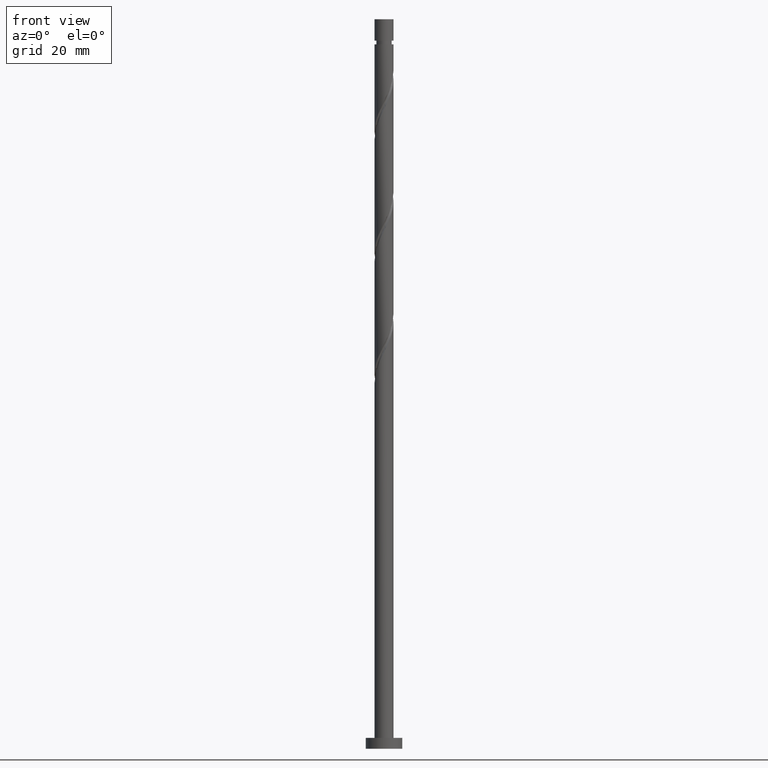
[diagram: clean part render]
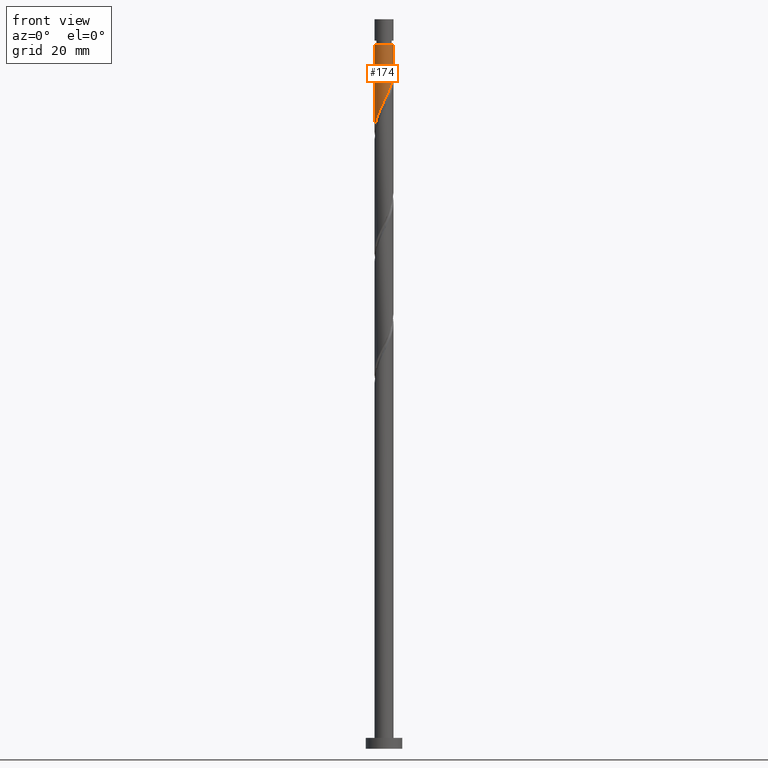
[diagram: same view with one face highlighted and labeled with its STEP entity id]
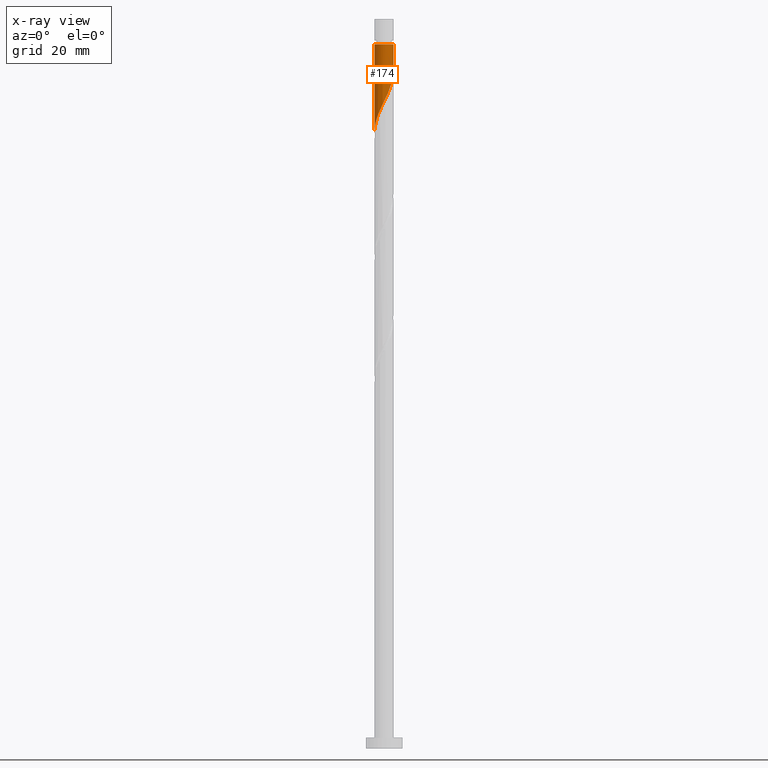
[diagram: x-ray of the same camera — body ghosted, the highlighted face saturated]
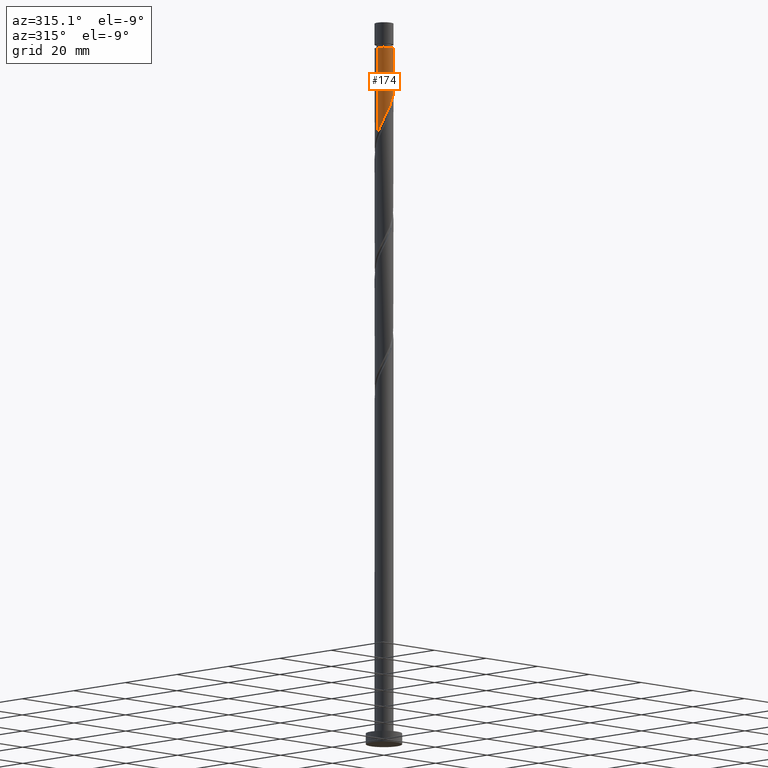
[diagram: same view with one face highlighted and labeled with its STEP entity id]
A machine part, front view. The second image highlights one B-rep face of the part: STEP entity #174.
The next image is the same camera in x-ray: the body ghosted, the highlighted face saturated — about 0% of this face is hidden behind the body in this view.
A second angle (auxiliary view) of the same face is appended — the face is thin or edge-on in the first view.
In plain terms, the highlighted cylindrical surface (edge-blend (fillet) strip) has radius 2.6 mm, axis along (-0, -0, -1).
Its self-contained STEP definition (entity closure, byte-faithful):
#33 = CARTESIAN_POINT ( 'NONE',  ( 1.947935995195027248, -1.722075886429968561, 181.9724245639431217 ) ) ;
#45 = CARTESIAN_POINT ( 'NONE',  ( 1.150490894682694609, -2.356594490121320717, 179.8890912306097221 ) ) ;
#54 = CARTESIAN_POINT ( 'NONE',  ( 0.1597072145073043792, -2.595090288532234890, 177.8057578972764645 ) ) ;
#75 = CARTESIAN_POINT ( 'NONE',  ( 2.600000000000000089, 3.364601499814508441E-16, 185.8137689969309179 ) ) ;
#131 = CARTESIAN_POINT ( 'NONE',  ( 2.600000000000000089, 3.184081677783118191E-16, 200.0000000000000000 ) ) ;
#169 = CARTESIAN_POINT ( 'NONE',  ( 2.600000000000000533, -0.2613098319673958225, 185.2803426277416463 ) ) ;
#174 = ADVANCED_FACE ( 'NONE', ( #1427 ), #1600, .T. ) ;
#239 = VERTEX_POINT ( 'NONE', #285 ) ;
#259 = ORIENTED_EDGE ( 'NONE', *, *, #957, .T. ) ;
#277 = AXIS2_PLACEMENT_3D ( 'NONE', #1588, #1430, #1043 ) ;
#279 = CARTESIAN_POINT ( 'NONE',  ( -2.600000000000000089, 0.000000000000000000, 200.0000000000000000 ) ) ;
#285 = CARTESIAN_POINT ( 'NONE',  ( -2.600000000000000089, -1.016857342166162551E-15, 169.1471023302643175 ) ) ;
#316 = CARTESIAN_POINT ( 'NONE',  ( -0.8528440311481289005, -2.479883857795150970, 175.7224245639430933 ) ) ;
#324 = CARTESIAN_POINT ( 'NONE',  ( -0.5173934672954439984, -2.547999999999999599, 176.4168690083875504 ) ) ;
#345 = CARTESIAN_POINT ( 'NONE',  ( -2.595090288532234890, -0.1597072145073052674, 169.4724245639431501 ) ) ;
#354 = CARTESIAN_POINT ( 'NONE',  ( 2.327267722236856518, -1.159234639335142258, 183.3613134528319790 ) ) ;
#495 = EDGE_LOOP ( 'NONE', ( #1225, #1172, #259, #1182 ) ) ;
#592 = CARTESIAN_POINT ( 'NONE',  ( 1.721220403711493541, -1.978526525337782838, 181.2779801194986362 ) ) ;
#600 = CARTESIAN_POINT ( 'NONE',  ( -2.465329462490471801, -0.8259241135700320369, 170.8613134528319222 ) ) ;
#607 = CARTESIAN_POINT ( 'NONE',  ( -1.978526525337782838, -1.721220403711493763, 172.9446467861652366 ) ) ;
#671 = LINE ( 'NONE', #279, #860 ) ;
#672 = DIRECTION ( 'NONE',  ( -0.000000000000000000, -0.000000000000000000, -1.000000000000000000 ) ) ;
#691 =( BOUNDED_CURVE ( )  B_SPLINE_CURVE ( 2, ( #75, #169, #1522, #734, #354, #889, #33, #592, #1275, #45, #720, #1543, #54, #757, #324, #316, #903, #879, #1014, #607, #1155, #1392, #600, #1533, #345, #1422, #896 ),
 .UNSPECIFIED., .F., .T. ) 
 B_SPLINE_CURVE_WITH_KNOTS ( ( 3, 2, 2, 2, 2, 2, 2, 2, 2, 2, 2, 2, 2, 3 ),
 ( 0.3045317669814462391, 0.3125000000000000000, 0.3229166666666666852, 0.3333333333333333148, 0.3437500000000000000, 0.3541666666666666852, 0.3645833333333333148, 0.3750000000000000000, 0.3854166666666666852, 0.3958333333333333148, 0.4062500000000000000, 0.4166666666666666852, 0.4270833333333333148, 0.4295317669814462391 ),
 .UNSPECIFIED. ) 
 CURVE ( )  GEOMETRIC_REPRESENTATION_ITEM ( )  RATIONAL_B_SPLINE_CURVE ( ( 0.9062941362546473867, 0.9031415850403514689, 0.9090909090909268242, 0.9013135103398453030, 0.9090909090909268242, 0.9013135103398453030, 0.9090909090909268242, 0.9013135103398453030, 0.9090909090909268242, 0.9013135103398453030, 0.9090909090909268242, 0.9013135103398453030, 0.9090909090909268242, 0.9013135103398453030, 0.9090909090909268242, 0.9013135103398453030, 0.9090909090909268242, 0.9013135103398453030, 0.9090909090909268242, 0.9013135103398453030, 0.9090909090909268242, 0.9013135103398453030, 0.9090909090909268242, 0.9013135103398453030, 0.9090909090909268242, 0.9072628343904207693, 0.9062941362546473867 ) ) 
 REPRESENTATION_ITEM ( '' )  );
#697 = VECTOR ( 'NONE', #672, 1000.000000000000000 ) ;
#720 = CARTESIAN_POINT ( 'NONE',  ( 0.8259241135700319258, -2.465329462490472245, 179.1946467861653502 ) ) ;
#731 = CIRCLE ( 'NONE', #277, 2.599999999999988542 ) ;
#734 = CARTESIAN_POINT ( 'NONE',  ( 2.479883857795150082, -0.8528440311481304548, 184.0557578972764361 ) ) ;
#757 = CARTESIAN_POINT ( 'NONE',  ( -0.1819429034427596792, -2.616116142204848671, 177.1113134528320074 ) ) ;
#805 = CARTESIAN_POINT ( 'NONE',  ( -2.599999999999988542, 0.000000000000000000, 193.0835356750542076 ) ) ;
#820 = LINE ( 'NONE', #131, #697 ) ;
#825 = EDGE_CURVE ( 'NONE', #1265, #239, #691, .T. ) ;
#843 = CARTESIAN_POINT ( 'NONE',  ( 2.600000000000000089, 3.364601499814508441E-16, 185.8137689969309179 ) ) ;
#860 = VECTOR ( 'NONE', #1743, 1000.000000000000000 ) ;
#879 = CARTESIAN_POINT ( 'NONE',  ( -1.465625247522152286, -2.174651586678561177, 174.3335356750541507 ) ) ;
#889 = CARTESIAN_POINT ( 'NONE',  ( 2.174651586678561177, -1.465625247522153396, 182.6668690083874935 ) ) ;
#896 = CARTESIAN_POINT ( 'NONE',  ( -2.600000000000000089, -1.016857342166162551E-15, 169.1471023302643175 ) ) ;
#903 = CARTESIAN_POINT ( 'NONE',  ( -1.159234639335141148, -2.327267722236857406, 175.0279801194986931 ) ) ;
#943 = CARTESIAN_POINT ( 'NONE',  ( 2.599999999999988542, 3.184081677783110795E-16, 193.0835356750542076 ) ) ;
#957 = EDGE_CURVE ( 'NONE', #1639, #239, #671, .T. ) ;
#1014 = CARTESIAN_POINT ( 'NONE',  ( -1.722075886429968339, -1.947935995195027248, 173.6390912306098073 ) ) ;
#1043 = DIRECTION ( 'NONE',  ( -1.000000000000000000, 0.000000000000000000, 0.000000000000000000 ) ) ;
#1155 = CARTESIAN_POINT ( 'NONE',  ( -2.167560507729551667, -1.435855649197094630, 172.2502023417208932 ) ) ;
#1172 = ORIENTED_EDGE ( 'NONE', *, *, #1207, .T. ) ;
#1182 = ORIENTED_EDGE ( 'NONE', *, *, #825, .F. ) ;
#1196 = DIRECTION ( 'NONE',  ( -0.000000000000000000, -0.000000000000000000, -1.000000000000000000 ) ) ;
#1207 = EDGE_CURVE ( 'NONE', #1602, #1639, #731, .T. ) ;
#1225 = ORIENTED_EDGE ( 'NONE', *, *, #1436, .F. ) ;
#1265 = VERTEX_POINT ( 'NONE', #843 ) ;
#1275 = CARTESIAN_POINT ( 'NONE',  ( 1.435855649197093520, -2.167560507729552111, 180.5835356750542076 ) ) ;
#1311 = CARTESIAN_POINT ( 'NONE',  ( 0.000000000000000000, 0.000000000000000000, 200.0000000000000000 ) ) ;
#1392 = CARTESIAN_POINT ( 'NONE',  ( -2.356594490121320717, -1.150490894682694609, 171.5557578972764361 ) ) ;
#1422 = CARTESIAN_POINT ( 'NONE',  ( -2.599999999999999645, -0.07992907430995069284, 169.3102660182924240 ) ) ;
#1427 = FACE_OUTER_BOUND ( 'NONE', #495, .T. ) ;
#1430 = DIRECTION ( 'NONE',  ( -0.000000000000000000, -0.000000000000000000, -1.000000000000000000 ) ) ;
#1436 = EDGE_CURVE ( 'NONE', #1602, #1265, #820, .T. ) ;
#1522 = CARTESIAN_POINT ( 'NONE',  ( 2.547999999999999599, -0.5173934672954442204, 184.7502023417209216 ) ) ;
#1533 = CARTESIAN_POINT ( 'NONE',  ( -2.574064434859621997, -0.5013573324573691314, 170.1668690083875219 ) ) ;
#1543 = CARTESIAN_POINT ( 'NONE',  ( 0.5013573324573682433, -2.574064434859622441, 178.5002023417208648 ) ) ;
#1588 = CARTESIAN_POINT ( 'NONE',  ( 0.000000000000000000, 0.000000000000000000, 193.0835356750542076 ) ) ;
#1600 = CYLINDRICAL_SURFACE ( 'NONE', #1623, 2.600000000000000089 ) ;
#1602 = VERTEX_POINT ( 'NONE', #943 ) ;
#1623 = AXIS2_PLACEMENT_3D ( 'NONE', #1311, #1196, #1718 ) ;
#1639 = VERTEX_POINT ( 'NONE', #805 ) ;
#1718 = DIRECTION ( 'NONE',  ( -1.000000000000000000, 0.000000000000000000, 0.000000000000000000 ) ) ;
#1743 = DIRECTION ( 'NONE',  ( -0.000000000000000000, -0.000000000000000000, -1.000000000000000000 ) ) ;